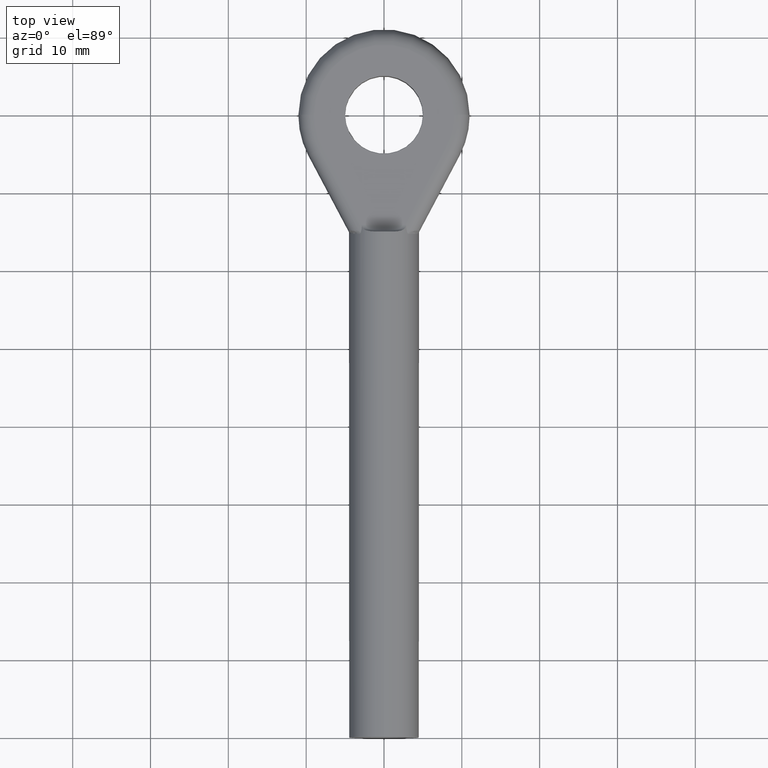
[diagram: clean part render]
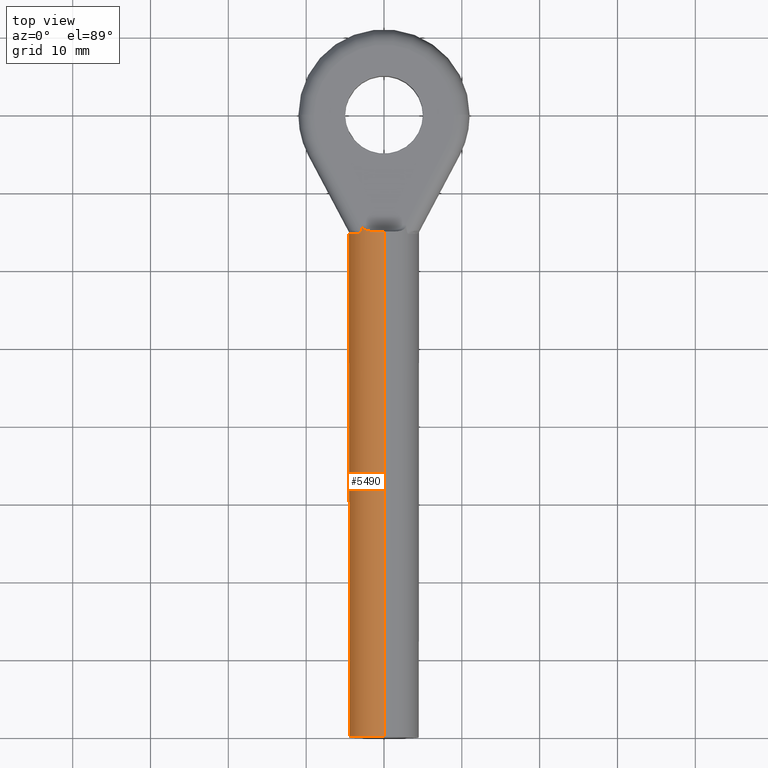
[diagram: same view with one face highlighted and labeled with its STEP entity id]
A machine part, top view. The second image highlights one B-rep face of the part: STEP entity #5490.
In plain terms, the highlighted cylindrical surface (edge-blend (fillet) strip) has radius 4.5 mm, axis along (-0, -1, -0).
Its self-contained STEP definition (entity closure, byte-faithful):
#41 = CARTESIAN_POINT ( 'NONE',  ( -2.839295530795094447, 65.69301611717344258, 3.491199296745328251 ) ) ;
#159 = B_SPLINE_CURVE_WITH_KNOTS ( 'NONE', 3,
 ( #5442, #1433, #439, #5796, #11376, #12695 ),
 .UNSPECIFIED., .F., .F.,
 ( 4, 2, 4 ),
 ( 0.000000000000000000, 0.0002453298340665153662, 0.0004906596681330307325 ),
 .UNSPECIFIED. ) ;
#429 = VERTEX_POINT ( 'NONE', #16835 ) ;
#439 = CARTESIAN_POINT ( 'NONE',  ( -2.770442130640912826, 65.55980093631244188, 3.546230844664421955 ) ) ;
#751 = CARTESIAN_POINT ( 'NONE',  ( -2.644759609000712164, 65.37657988018993649, -3.641155757224903144 ) ) ;
#796 = CARTESIAN_POINT ( 'NONE',  ( -4.274629918191748423, 64.70598092810024582, 1.406250000000000000 ) ) ;
#822 = VECTOR ( 'NONE', #6113, 1000.000000000000000 ) ;
#830 = CARTESIAN_POINT ( 'NONE',  ( -4.260145082802459626, 64.70284871522346748, 1.450280087619653546 ) ) ;
#863 = CARTESIAN_POINT ( 'NONE',  ( -3.109647695654605748, 64.70000000000000284, 3.252705213958067443 ) ) ;
#985 = CARTESIAN_POINT ( 'NONE',  ( -4.432175554817016305, 64.78890462427416708, -0.8310991206549737109 ) ) ;
#1207 = EDGE_CURVE ( 'NONE', #3801, #429, #10202, .T. ) ;
#1298 = DIRECTION ( 'NONE',  ( 1.776356839400250465E-15, 0.000000000000000000, 1.000000000000000000 ) ) ;
#1410 = CARTESIAN_POINT ( 'NONE',  ( -4.467260580358098920, 64.85952338570743336, -0.5418329144476312642 ) ) ;
#1433 = CARTESIAN_POINT ( 'NONE',  ( -2.732428663878567754, 65.49221962787389373, 3.575897846644668920 ) ) ;
#1438 = VERTEX_POINT ( 'NONE', #7817 ) ;
#1648 = VERTEX_POINT ( 'NONE', #17439 ) ;
#1708 = CARTESIAN_POINT ( 'NONE',  ( -2.686967744623053989, 65.43225446411670987, -3.609737433575369803 ) ) ;
#1921 = DIRECTION ( 'NONE',  ( -0.000000000000000000, -1.000000000000000000, -0.000000000000000000 ) ) ;
#1936 = VERTEX_POINT ( 'NONE', #16829 ) ;
#2103 = CARTESIAN_POINT ( 'NONE',  ( -1.152171862180291440, 65.00000000000000000, -4.349999999999999645 ) ) ;
#2105 = AXIS2_PLACEMENT_3D ( 'NONE', #2669, #4190, #1298 ) ;
#2158 = CARTESIAN_POINT ( 'NONE',  ( -4.244943302788803052, 64.70118585772850395, 1.494193459168078331 ) ) ;
#2170 = EDGE_CURVE ( 'NONE', #5549, #12421, #8961, .T. ) ;
#2183 = CARTESIAN_POINT ( 'NONE',  ( -4.368662329726698879, 64.72631457513701037, 1.120416215376343727 ) ) ;
#2200 = CARTESIAN_POINT ( 'NONE',  ( -2.770442130640919487, 65.55980093631244188, -3.546230844664414406 ) ) ;
#2316 = CIRCLE ( 'NONE', #14530, 4.500000000000000000 ) ;
#2430 = CARTESIAN_POINT ( 'NONE',  ( -3.015221051448583545, 64.79688103223027440, -3.340456248196103317 ) ) ;
#2669 = CARTESIAN_POINT ( 'NONE',  ( 0.000000000000000000, 64.70000000000000284, 0.000000000000000000 ) ) ;
#2770 = CARTESIAN_POINT ( 'NONE',  ( -4.510966329698421262, 64.94749384714346263, -0.1814912556872988192 ) ) ;
#2855 = CARTESIAN_POINT ( 'NONE',  ( -4.274629918191748423, 64.70598092810024582, -1.406250000000000000 ) ) ;
#2932 = CARTESIAN_POINT ( 'NONE',  ( 0.000000000000000000, 64.70000000000000284, 0.000000000000000000 ) ) ;
#3069 = VERTEX_POINT ( 'NONE', #5348 ) ;
#3216 = CARTESIAN_POINT ( 'NONE',  ( 0.000000000000000000, 65.00000000000000000, 0.000000000000000000 ) ) ;
#3325 = EDGE_CURVE ( 'NONE', #5549, #13664, #11581, .T. ) ;
#3382 = B_SPLINE_CURVE_WITH_KNOTS ( 'NONE', 3,
 ( #14793, #985, #11921, #4187 ),
 .UNSPECIFIED., .F., .F.,
 ( 4, 4 ),
 ( 0.0005469900134356113670, 0.001446169464758808015 ),
 .UNSPECIFIED. ) ;
#3387 = CARTESIAN_POINT ( 'NONE',  ( 0.000000000000000000, 0.1000000000000028644, 0.000000000000000000 ) ) ;
#3695 = B_SPLINE_CURVE_WITH_KNOTS ( 'NONE', 3,
 ( #17351, #751, #6320, #13290, #16000, #9119, #14671, #14549, #8954, #13234 ),
 .UNSPECIFIED., .F., .F.,
 ( 4, 2, 2, 2, 4 ),
 ( 9.209305829070357709E-05, 0.0003218421775551817384, 0.0005515912968196598183, 0.001011089535348615003, 0.001930086012406527322 ),
 .UNSPECIFIED. ) ;
#3768 = EDGE_CURVE ( 'NONE', #1438, #14323, #13993, .T. ) ;
#3801 = VERTEX_POINT ( 'NONE', #13709 ) ;
#4187 = CARTESIAN_POINT ( 'NONE',  ( -4.274629918191748423, 64.70598092810024582, -1.406250000000000000 ) ) ;
#4190 = DIRECTION ( 'NONE',  ( -0.000000000000000000, -1.000000000000000000, -0.000000000000000000 ) ) ;
#4277 = ORIENTED_EDGE ( 'NONE', *, *, #11876, .T. ) ;
#4348 = CARTESIAN_POINT ( 'NONE',  ( -2.832718882806248839, 65.87344453524475796, -3.496527381702152493 ) ) ;
#4357 = CARTESIAN_POINT ( 'NONE',  ( 0.000000000000000000, 65.00000000000000000, -4.500000000000000000 ) ) ;
#4359 = ORIENTED_EDGE ( 'NONE', *, *, #12447, .F. ) ;
#4420 = VERTEX_POINT ( 'NONE', #4514 ) ;
#4429 = CARTESIAN_POINT ( 'NONE',  ( 5.510910596163088569E-16, 0.1000000000000028644, 4.500000000000000000 ) ) ;
#4514 = CARTESIAN_POINT ( 'NONE',  ( -4.208024082837659385, 64.70000000000000284, -1.594532319602919523 ) ) ;
#4729 = DIRECTION ( 'NONE',  ( 0.000000000000000000, 0.000000000000000000, -1.000000000000000000 ) ) ;
#4883 = CARTESIAN_POINT ( 'NONE',  ( -4.208024082837659385, 64.70000000000000284, -1.594532319602919523 ) ) ;
#5017 = CARTESIAN_POINT ( 'NONE',  ( -3.109647695654609301, 64.70000000000000284, -3.252705213958064334 ) ) ;
#5162 = VERTEX_POINT ( 'NONE', #2103 ) ;
#5266 = EDGE_CURVE ( 'NONE', #12518, #5162, #6292, .T. ) ;
#5348 = CARTESIAN_POINT ( 'NONE',  ( -3.109647695654609301, 64.70000000000000284, -3.252705213958064334 ) ) ;
#5367 = B_SPLINE_CURVE_WITH_KNOTS ( 'NONE', 3,
 ( #7643, #10322, #17251, #9024, #2158, #830, #10384 ),
 .UNSPECIFIED., .F., .F.,
 ( 4, 3, 4 ),
 ( 0.000000000000000000, 6.046632269189437125E-05, 0.0001998867171962840814 ),
 .UNSPECIFIED. ) ;
#5413 = CARTESIAN_POINT ( 'NONE',  ( -4.510966329698422150, 64.94749384714347684, 0.1814912556872979865 ) ) ;
#5442 = CARTESIAN_POINT ( 'NONE',  ( -2.686967744623042886, 65.43225446411669566, 3.609737433575376908 ) ) ;
#5490 = ADVANCED_FACE ( 'NONE', ( #6486 ), #12488, .T. ) ;
#5549 = VERTEX_POINT ( 'NONE', #9173 ) ;
#5570 = ORIENTED_EDGE ( 'NONE', *, *, #13904, .T. ) ;
#5615 = EDGE_CURVE ( 'NONE', #13664, #5162, #3695, .T. ) ;
#5726 = CARTESIAN_POINT ( 'NONE',  ( -2.839295530795094002, 65.69301611717345679, -3.491199296745328251 ) ) ;
#5796 = CARTESIAN_POINT ( 'NONE',  ( -2.822477508851505057, 65.70963384454637435, 3.504956991876917449 ) ) ;
#5836 = CARTESIAN_POINT ( 'NONE',  ( -1.725845016271698507, 65.00816593386686293, 4.166424801404083667 ) ) ;
#6012 = CARTESIAN_POINT ( 'NONE',  ( -1.445238177159481996, 65.00000000000001421, 4.272376376581174640 ) ) ;
#6113 = DIRECTION ( 'NONE',  ( -0.000000000000000000, -1.000000000000000000, -0.000000000000000000 ) ) ;
#6138 = CARTESIAN_POINT ( 'NONE',  ( -3.004537823797515106, 64.82654200164574831, 3.350037681186600835 ) ) ;
#6225 = CARTESIAN_POINT ( 'NONE',  ( 0.000000000000000000, 65.00000000000000000, -4.500000000000000000 ) ) ;
#6292 = CIRCLE ( 'NONE', #7690, 4.500000000000000000 ) ;
#6317 = CARTESIAN_POINT ( 'NONE',  ( -3.087799917190150012, 64.71191744465158990, 3.273592103328065051 ) ) ;
#6320 = CARTESIAN_POINT ( 'NONE',  ( -2.595134934481230005, 65.32809122192250584, -3.676871502550665305 ) ) ;
#6375 = CARTESIAN_POINT ( 'NONE',  ( -3.004537823797517770, 64.82654200164574831, -3.350037681186598615 ) ) ;
#6435 = AXIS2_PLACEMENT_3D ( 'NONE', #3216, #1921, #4729 ) ;
#6486 = FACE_OUTER_BOUND ( 'NONE', #8070, .T. ) ;
#6487 = VERTEX_POINT ( 'NONE', #2855 ) ;
#6792 = CARTESIAN_POINT ( 'NONE',  ( -2.945394147843089616, 64.99074881450569308, 3.403081684972417698 ) ) ;
#6884 = CARTESIAN_POINT ( 'NONE',  ( -2.945394147843092725, 64.99074881450570729, -3.403081684972415921 ) ) ;
#6963 = CARTESIAN_POINT ( 'NONE',  ( -2.853641043444015146, 65.51459836617735277, 3.479643924761724350 ) ) ;
#7117 = CARTESIAN_POINT ( 'NONE',  ( -4.208024082837574120, 64.70000000000000284, 1.594532319603146009 ) ) ;
#7201 =( BOUNDED_CURVE ( )  B_SPLINE_CURVE ( 3, ( #9581, #5413, #2770, #1410 ),
 .UNSPECIFIED., .F., .T. ) 
 B_SPLINE_CURVE_WITH_KNOTS ( ( 4, 4 ),
 ( 3.020892481967164311, 3.262292825212422365 ),
 .UNSPECIFIED. ) 
 CURVE ( )  GEOMETRIC_REPRESENTATION_ITEM ( )  RATIONAL_B_SPLINE_CURVE ( ( 1.000000000000000000, 0.9951497156085975515, 0.9951497156085975515, 1.000000000000000000 ) ) 
 REPRESENTATION_ITEM ( '' )  );
#7203 = ORIENTED_EDGE ( 'NONE', *, *, #5615, .T. ) ;
#7230 = CARTESIAN_POINT ( 'NONE',  ( -2.644759609000701506, 65.37657988018995070, 3.641155757224910250 ) ) ;
#7381 = DIRECTION ( 'NONE',  ( 0.000000000000000000, 0.000000000000000000, 1.000000000000000000 ) ) ;
#7501 = CARTESIAN_POINT ( 'NONE',  ( -3.029955168109190300, 64.77045192416251496, 3.327158177269607275 ) ) ;
#7643 = CARTESIAN_POINT ( 'NONE',  ( -4.208024082837574120, 64.70000000000000284, 1.594532319603146009 ) ) ;
#7664 = CARTESIAN_POINT ( 'NONE',  ( -4.274629918191748423, 64.70598092810024582, -1.406250000000000000 ) ) ;
#7690 = AXIS2_PLACEMENT_3D ( 'NONE', #14758, #13312, #9319 ) ;
#7803 = CARTESIAN_POINT ( 'NONE',  ( -3.087538661928741934, 64.71205995319493809, -3.273841868298486890 ) ) ;
#7817 = CARTESIAN_POINT ( 'NONE',  ( 5.510910596163088569E-16, 65.00000000000000000, 4.500000000000000000 ) ) ;
#7980 = DIRECTION ( 'NONE',  ( 0.000000000000000000, 0.000000000000000000, 1.000000000000000000 ) ) ;
#8030 = ORIENTED_EDGE ( 'NONE', *, *, #16893, .T. ) ;
#8041 = DIRECTION ( 'NONE',  ( 0.000000000000000000, 1.000000000000000000, 0.000000000000000000 ) ) ;
#8070 = EDGE_LOOP ( 'NONE', ( #17540, #4359, #12600, #17539, #11620, #8030, #10082, #5570, #14574, #15546, #4277, #9789, #14416, #8266, #10029, #13566, #7203, #11818, #8299, #12581 ) ) ;
#8216 = B_SPLINE_CURVE_WITH_KNOTS ( 'NONE', 3,
 ( #10478, #8949, #7501, #13063, #6317, #863 ),
 .UNSPECIFIED., .F., .F.,
 ( 4, 2, 4 ),
 ( 6.133173666733496745E-19, 9.747058888681215760E-05, 0.0001949411777736237189 ),
 .UNSPECIFIED. ) ;
#8266 = ORIENTED_EDGE ( 'NONE', *, *, #14072, .T. ) ;
#8295 = B_SPLINE_CURVE_WITH_KNOTS ( 'NONE', 3,
 ( #17024, #6012, #5836, #11418, #14050, #8684, #8619, #9930, #7230, #15612 ),
 .UNSPECIFIED., .F., .F.,
 ( 4, 2, 2, 2, 4 ),
 ( 0.000000000000000000, 0.0008972609884722932598, 0.001345891482708437125, 0.001570206729826508895, 0.001794521976944580882 ),
 .UNSPECIFIED. ) ;
#8299 = ORIENTED_EDGE ( 'NONE', *, *, #14852, .T. ) ;
#8440 = EDGE_CURVE ( 'NONE', #8699, #9182, #15282, .T. ) ;
#8447 = B_SPLINE_CURVE_WITH_KNOTS ( 'NONE', 3,
 ( #5017, #7803, #17526, #13402, #2430, #6375 ),
 .UNSPECIFIED., .F., .F.,
 ( 4, 2, 4 ),
 ( -4.561522249081189800E-06, 9.407461782527266610E-05, 0.0001927107578996265381 ),
 .UNSPECIFIED. ) ;
#8460 = EDGE_CURVE ( 'NONE', #4420, #3069, #10302, .T. ) ;
#8587 = EDGE_CURVE ( 'NONE', #1936, #9182, #159, .T. ) ;
#8619 = CARTESIAN_POINT ( 'NONE',  ( -2.489345951957905978, 65.24613514870094377, 3.749302082508808365 ) ) ;
#8684 = CARTESIAN_POINT ( 'NONE',  ( -2.432938125355002423, 65.21212305201790116, 3.786249383043402084 ) ) ;
#8699 = VERTEX_POINT ( 'NONE', #6138 ) ;
#8778 = EDGE_CURVE ( 'NONE', #6487, #4420, #10007, .T. ) ;
#8886 = DIRECTION ( 'NONE',  ( 0.000000000000000000, 1.000000000000000000, 0.000000000000000000 ) ) ;
#8949 = CARTESIAN_POINT ( 'NONE',  ( -3.015221743350533945, 64.79687911122942978, 3.340455627652162196 ) ) ;
#8954 = CARTESIAN_POINT ( 'NONE',  ( -1.445238177159484882, 65.00000000000000000, -4.272376376581173751 ) ) ;
#8961 = B_SPLINE_CURVE_WITH_KNOTS ( 'NONE', 3,
 ( #4348, #5726, #16542, #16424, #6884, #11070 ),
 .UNSPECIFIED., .F., .F.,
 ( 4, 2, 4 ),
 ( 0.000000000000000000, 0.0005355937668534405637, 0.001071187533706881127 ),
 .UNSPECIFIED. ) ;
#9024 = CARTESIAN_POINT ( 'NONE',  ( -4.229068795897094724, 64.70045611985510448, 1.537848210835350615 ) ) ;
#9119 = CARTESIAN_POINT ( 'NONE',  ( -2.255033047490441867, 65.12485773771011566, -3.896705686132297508 ) ) ;
#9165 = DIRECTION ( 'NONE',  ( -0.000000000000000000, -1.000000000000000000, -0.000000000000000000 ) ) ;
#9173 = CARTESIAN_POINT ( 'NONE',  ( -2.832718882806248839, 65.87344453524475796, -3.496527381702152493 ) ) ;
#9182 = VERTEX_POINT ( 'NONE', #13216 ) ;
#9225 = CARTESIAN_POINT ( 'NONE',  ( 0.000000000000000000, 65.00000000000000000, 0.000000000000000000 ) ) ;
#9262 = VERTEX_POINT ( 'NONE', #7117 ) ;
#9319 = DIRECTION ( 'NONE',  ( 0.000000000000000000, 0.000000000000000000, 1.000000000000000000 ) ) ;
#9320 = EDGE_CURVE ( 'NONE', #14407, #1936, #8295, .T. ) ;
#9581 = CARTESIAN_POINT ( 'NONE',  ( -4.467260580358098920, 64.85952338570743336, 0.5418329144476291548 ) ) ;
#9738 = DIRECTION ( 'NONE',  ( -0.000000000000000000, -1.000000000000000000, -0.000000000000000000 ) ) ;
#9789 = ORIENTED_EDGE ( 'NONE', *, *, #8778, .T. ) ;
#9903 = DIRECTION ( 'NONE',  ( 0.000000000000000000, 0.000000000000000000, 1.000000000000000000 ) ) ;
#9930 = CARTESIAN_POINT ( 'NONE',  ( -2.595134934481215350, 65.32809122192250584, 3.676871502550677739 ) ) ;
#10007 = B_SPLINE_CURVE_WITH_KNOTS ( 'NONE', 3,
 ( #7664, #14480, #17273, #4883 ),
 .UNSPECIFIED., .F., .F.,
 ( 4, 4 ),
 ( 2.091695478256946045E-17, 0.0001998057573725134481 ),
 .UNSPECIFIED. ) ;
#10029 = ORIENTED_EDGE ( 'NONE', *, *, #2170, .F. ) ;
#10082 = ORIENTED_EDGE ( 'NONE', *, *, #16669, .T. ) ;
#10202 = B_SPLINE_CURVE_WITH_KNOTS ( 'NONE', 3,
 ( #796, #2183, #14843, #11302 ),
 .UNSPECIFIED., .F., .F.,
 ( 4, 4 ),
 ( 0.000000000000000000, 0.0009001408779025087299 ),
 .UNSPECIFIED. ) ;
#10294 = CARTESIAN_POINT ( 'NONE',  ( -3.004537823797517770, 64.82654200164574831, -3.350037681186598615 ) ) ;
#10302 = CIRCLE ( 'NONE', #2105, 4.500000000000000000 ) ;
#10322 = CARTESIAN_POINT ( 'NONE',  ( -4.215165972154593987, 64.70000000000000284, 1.575684635004029222 ) ) ;
#10371 = CARTESIAN_POINT ( 'NONE',  ( -2.686967744623053989, 65.43225446411670987, -3.609737433575369803 ) ) ;
#10384 = CARTESIAN_POINT ( 'NONE',  ( -4.274629918191748423, 64.70598092810024582, 1.406250000000000000 ) ) ;
#10478 = CARTESIAN_POINT ( 'NONE',  ( -3.004537823797515106, 64.82654200164574831, 3.350037681186600835 ) ) ;
#11070 = CARTESIAN_POINT ( 'NONE',  ( -3.004537823797517770, 64.82654200164574831, -3.350037681186598615 ) ) ;
#11302 = CARTESIAN_POINT ( 'NONE',  ( -4.467260580358098920, 64.85952338570743336, 0.5418329144476291548 ) ) ;
#11376 = CARTESIAN_POINT ( 'NONE',  ( -2.835690726234973980, 65.79191287811956101, 3.494119736609072380 ) ) ;
#11418 = CARTESIAN_POINT ( 'NONE',  ( -2.124053851116772584, 65.08644640248283508, 3.969924986576224946 ) ) ;
#11581 = B_SPLINE_CURVE_WITH_KNOTS ( 'NONE', 3,
 ( #17120, #15773, #17472, #2200, #13244, #10371 ),
 .UNSPECIFIED., .F., .F.,
 ( 4, 2, 4 ),
 ( 0.0001188100533635348460, 0.0003633650018801173605, 0.0006079199503966998749 ),
 .UNSPECIFIED. ) ;
#11620 = ORIENTED_EDGE ( 'NONE', *, *, #8440, .F. ) ;
#11697 = CARTESIAN_POINT ( 'NONE',  ( -4.467260580358098920, 64.85952338570743336, -0.5418329144476312642 ) ) ;
#11772 = CIRCLE ( 'NONE', #16115, 4.500000000000000000 ) ;
#11818 = ORIENTED_EDGE ( 'NONE', *, *, #5266, .F. ) ;
#11876 = EDGE_CURVE ( 'NONE', #16807, #6487, #3382, .T. ) ;
#11921 = CARTESIAN_POINT ( 'NONE',  ( -4.368662329726699767, 64.72631457513701037, -1.120416215376341063 ) ) ;
#12234 = CARTESIAN_POINT ( 'NONE',  ( -2.906630401258980090, 65.16425430841493949, 3.435504149093186577 ) ) ;
#12421 = VERTEX_POINT ( 'NONE', #10294 ) ;
#12447 = EDGE_CURVE ( 'NONE', #14407, #1438, #11772, .T. ) ;
#12488 = CYLINDRICAL_SURFACE ( 'NONE', #6435, 4.500000000000000000 ) ;
#12518 = VERTEX_POINT ( 'NONE', #4357 ) ;
#12581 = ORIENTED_EDGE ( 'NONE', *, *, #17793, .T. ) ;
#12600 = ORIENTED_EDGE ( 'NONE', *, *, #9320, .T. ) ;
#12684 = CARTESIAN_POINT ( 'NONE',  ( -3.109647695654605748, 64.70000000000000284, 3.252705213958067443 ) ) ;
#12687 = VERTEX_POINT ( 'NONE', #12684 ) ;
#12695 = CARTESIAN_POINT ( 'NONE',  ( -2.832718882806248395, 65.87344453524475796, 3.496527381702153381 ) ) ;
#13063 = CARTESIAN_POINT ( 'NONE',  ( -3.066289408572111963, 64.72758650511738665, 3.293702949599749186 ) ) ;
#13216 = CARTESIAN_POINT ( 'NONE',  ( -2.832718882806248395, 65.87344453524475796, 3.496527381702153381 ) ) ;
#13234 = CARTESIAN_POINT ( 'NONE',  ( -1.152171862180291440, 65.00000000000000000, -4.349999999999999645 ) ) ;
#13244 = CARTESIAN_POINT ( 'NONE',  ( -2.732428663878573527, 65.49221962787389373, -3.575897846644665812 ) ) ;
#13290 = CARTESIAN_POINT ( 'NONE',  ( -2.489345951957921965, 65.24613514870090114, -3.749302082508796818 ) ) ;
#13312 = DIRECTION ( 'NONE',  ( 0.000000000000000000, 1.000000000000000000, 0.000000000000000000 ) ) ;
#13402 = CARTESIAN_POINT ( 'NONE',  ( -3.029950050040204790, 64.77046033095142263, -3.327162815947180885 ) ) ;
#13566 = ORIENTED_EDGE ( 'NONE', *, *, #3325, .T. ) ;
#13664 = VERTEX_POINT ( 'NONE', #1708 ) ;
#13709 = CARTESIAN_POINT ( 'NONE',  ( -4.274629918191748423, 64.70598092810024582, 1.406250000000000000 ) ) ;
#13800 = VECTOR ( 'NONE', #9165, 1000.000000000000000 ) ;
#13904 = EDGE_CURVE ( 'NONE', #9262, #3801, #5367, .T. ) ;
#13993 = LINE ( 'NONE', #14595, #13800 ) ;
#14050 = CARTESIAN_POINT ( 'NONE',  ( -2.255033047490430764, 65.12485773771011566, 3.896705686132302837 ) ) ;
#14072 = EDGE_CURVE ( 'NONE', #3069, #12421, #8447, .T. ) ;
#14323 = VERTEX_POINT ( 'NONE', #4429 ) ;
#14407 = VERTEX_POINT ( 'NONE', #17037 ) ;
#14416 = ORIENTED_EDGE ( 'NONE', *, *, #8460, .T. ) ;
#14480 = CARTESIAN_POINT ( 'NONE',  ( -4.253864176967018906, 64.70149052691168379, -1.469372388417887754 ) ) ;
#14530 = AXIS2_PLACEMENT_3D ( 'NONE', #3387, #8886, #7381 ) ;
#14549 = CARTESIAN_POINT ( 'NONE',  ( -1.725845016271704724, 65.00816593386684872, -4.166424801404080114 ) ) ;
#14574 = ORIENTED_EDGE ( 'NONE', *, *, #1207, .T. ) ;
#14595 = CARTESIAN_POINT ( 'NONE',  ( 5.510910596163088569E-16, 65.00000000000000000, 4.500000000000000000 ) ) ;
#14671 = CARTESIAN_POINT ( 'NONE',  ( -2.124053851116781910, 65.08644640248287772, -3.969924986576219617 ) ) ;
#14708 = EDGE_CURVE ( 'NONE', #429, #16807, #7201, .T. ) ;
#14758 = CARTESIAN_POINT ( 'NONE',  ( 0.000000000000000000, 65.00000000000000000, 0.000000000000000000 ) ) ;
#14793 = CARTESIAN_POINT ( 'NONE',  ( -4.467260580358098920, 64.85952338570743336, -0.5418329144476312642 ) ) ;
#14843 = CARTESIAN_POINT ( 'NONE',  ( -4.432175554817017193, 64.78890462427416708, 0.8310991206549678267 ) ) ;
#14852 = EDGE_CURVE ( 'NONE', #12518, #1648, #17340, .T. ) ;
#14984 = CARTESIAN_POINT ( 'NONE',  ( -2.832718882806248395, 65.87344453524475796, 3.496527381702153381 ) ) ;
#15282 = B_SPLINE_CURVE_WITH_KNOTS ( 'NONE', 3,
 ( #17776, #6792, #12234, #6963, #41, #14984 ),
 .UNSPECIFIED., .F., .F.,
 ( 4, 2, 4 ),
 ( 0.0001439874613035849193, 0.0006910248229963909155, 0.001238062184689196939 ),
 .UNSPECIFIED. ) ;
#15546 = ORIENTED_EDGE ( 'NONE', *, *, #14708, .T. ) ;
#15612 = CARTESIAN_POINT ( 'NONE',  ( -2.686967744623042886, 65.43225446411669566, 3.609737433575376908 ) ) ;
#15773 = CARTESIAN_POINT ( 'NONE',  ( -2.835690726234975312, 65.79191287811956101, -3.494119736609070603 ) ) ;
#16000 = CARTESIAN_POINT ( 'NONE',  ( -2.432938125355014414, 65.21212305201791537, -3.786249383043393202 ) ) ;
#16115 = AXIS2_PLACEMENT_3D ( 'NONE', #9225, #8041, #7980 ) ;
#16239 = CIRCLE ( 'NONE', #17417, 4.500000000000000000 ) ;
#16424 = CARTESIAN_POINT ( 'NONE',  ( -2.906630401258980090, 65.16425430841495370, -3.435504149093184800 ) ) ;
#16542 = CARTESIAN_POINT ( 'NONE',  ( -2.853641043444015590, 65.51459836617739541, -3.479643924761725238 ) ) ;
#16669 = EDGE_CURVE ( 'NONE', #12687, #9262, #16239, .T. ) ;
#16807 = VERTEX_POINT ( 'NONE', #11697 ) ;
#16829 = CARTESIAN_POINT ( 'NONE',  ( -2.686967744623042886, 65.43225446411669566, 3.609737433575376908 ) ) ;
#16835 = CARTESIAN_POINT ( 'NONE',  ( -4.467260580358098920, 64.85952338570743336, 0.5418329144476291548 ) ) ;
#16893 = EDGE_CURVE ( 'NONE', #8699, #12687, #8216, .T. ) ;
#17024 = CARTESIAN_POINT ( 'NONE',  ( -1.152171862180291440, 65.00000000000000000, 4.349999999999999645 ) ) ;
#17037 = CARTESIAN_POINT ( 'NONE',  ( -1.152171862180291440, 65.00000000000000000, 4.349999999999999645 ) ) ;
#17120 = CARTESIAN_POINT ( 'NONE',  ( -2.832718882806248839, 65.87344453524475796, -3.496527381702152493 ) ) ;
#17251 = CARTESIAN_POINT ( 'NONE',  ( -4.222181643761428127, 64.70013952320188366, 1.556787817478142655 ) ) ;
#17273 = CARTESIAN_POINT ( 'NONE',  ( -4.231623841191230362, 64.70000000000000284, -1.532251768572314932 ) ) ;
#17340 = LINE ( 'NONE', #6225, #822 ) ;
#17351 = CARTESIAN_POINT ( 'NONE',  ( -2.686967744623053989, 65.43225446411670987, -3.609737433575369803 ) ) ;
#17417 = AXIS2_PLACEMENT_3D ( 'NONE', #2932, #9738, #9903 ) ;
#17439 = CARTESIAN_POINT ( 'NONE',  ( 0.000000000000000000, 0.1000000000000028644, -4.500000000000000000 ) ) ;
#17472 = CARTESIAN_POINT ( 'NONE',  ( -2.822477508851508610, 65.70963384454638856, -3.504956991876915673 ) ) ;
#17526 = CARTESIAN_POINT ( 'NONE',  ( -3.066279962082062216, 64.72759528185694933, -3.293711721400986114 ) ) ;
#17539 = ORIENTED_EDGE ( 'NONE', *, *, #8587, .T. ) ;
#17540 = ORIENTED_EDGE ( 'NONE', *, *, #3768, .F. ) ;
#17776 = CARTESIAN_POINT ( 'NONE',  ( -3.004537823797515106, 64.82654200164574831, 3.350037681186600835 ) ) ;
#17793 = EDGE_CURVE ( 'NONE', #1648, #14323, #2316, .T. ) ;